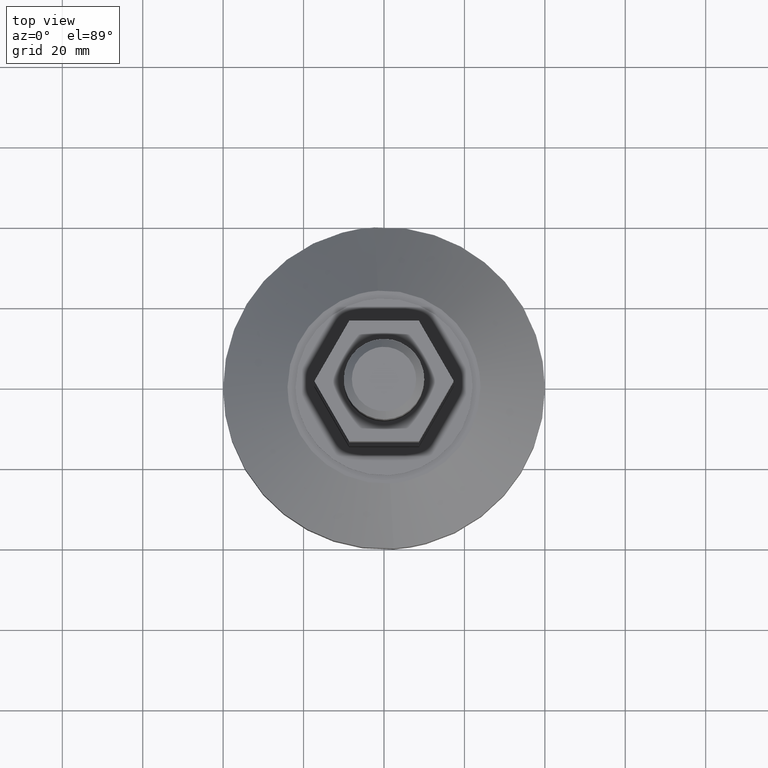
[diagram: clean part render]
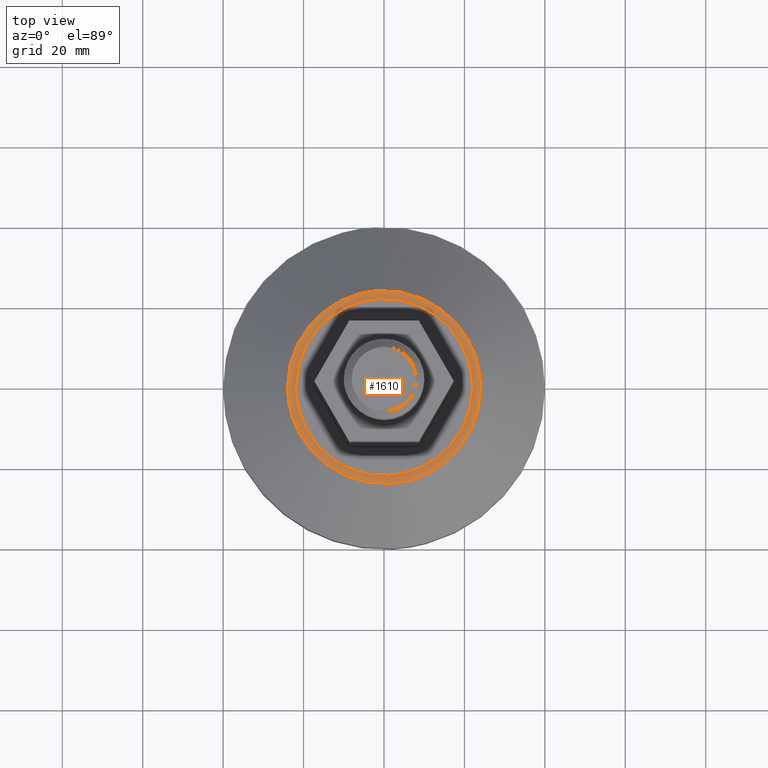
[diagram: same view with one face highlighted and labeled with its STEP entity id]
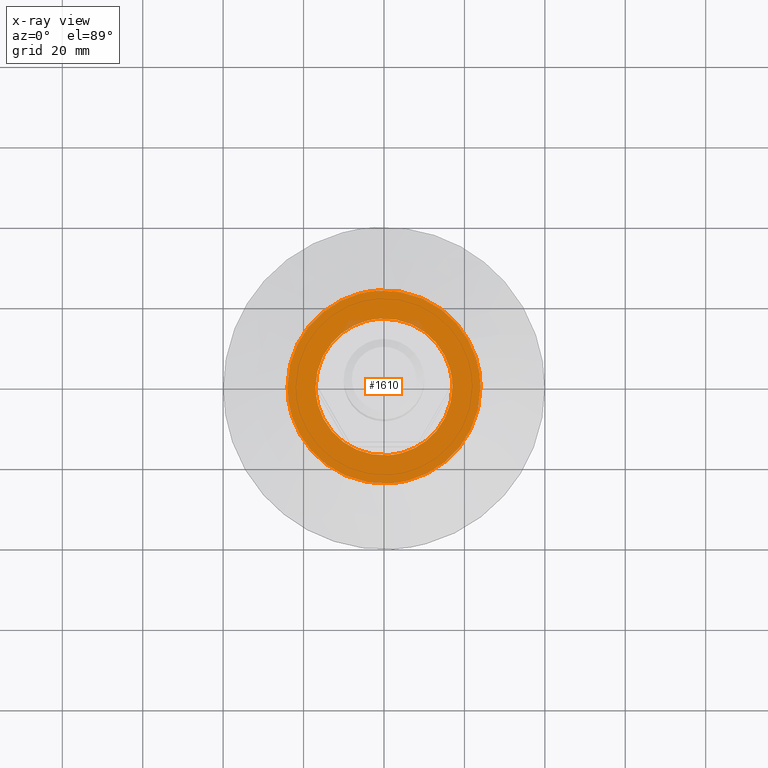
[diagram: x-ray of the same camera — body ghosted, the highlighted face saturated]
A machine part, top view. The second image highlights one B-rep face of the part: STEP entity #1610.
The next image is the same camera in x-ray: the body ghosted, the highlighted face saturated — about 1% of this face is hidden behind the body in this view.
In plain terms, the highlighted face is a freeform B-spline surface patch.
Its self-contained STEP definition (entity closure, byte-faithful):
#1358=CARTESIAN_POINT('',(-1.465164948888598,23.955235162128471,27.999999999994159));
#1359=VERTEX_POINT('',#1358);
#1365=CARTESIAN_POINT('',(23.999999999999659,0.0,28.0));
#1366=VERTEX_POINT('',#1365);
#1367=CARTESIAN_POINT('',(-1.465164948888598,23.955235162128460,27.999999999994156));
#1368=CARTESIAN_POINT('',(-0.733266319192427,24.000000000006715,27.999999999994241));
#1369=CARTESIAN_POINT('',(-4.108950E-013,24.000000000006612,27.999999999994341));
#1370=CARTESIAN_POINT('',(23.999999999999460,24.000000000003027,27.999999999997254));
#1371=CARTESIAN_POINT('',(23.999999999999659,0.0,28.0));
#1379=(BOUNDED_CURVE()B_SPLINE_CURVE(2,(#1367,#1368,#1369,#1370,#1371),.UNSPECIFIED.,.F.,.U.)B_SPLINE_CURVE_WITH_KNOTS((3,2,3),(0.239332962241596,0.250000000000000,0.500000000000000),.UNSPECIFIED.)CURVE()GEOMETRIC_REPRESENTATION_ITEM()RATIONAL_B_SPLINE_CURVE((0.976072041672405,0.987502787902946,1.0,0.707106781186548,1.0))REPRESENTATION_ITEM(''));
#1380=EDGE_CURVE('',#1359,#1366,#1379,.T.);
#1382=CARTESIAN_POINT('',(1.465164948888622,-23.955235162128471,27.999999999994159));
#1383=VERTEX_POINT('',#1382);
#1384=CARTESIAN_POINT('',(23.999999999999659,0.0,28.0));
#1385=CARTESIAN_POINT('',(23.999999999999886,-22.576945605691197,27.999999999997073));
#1386=CARTESIAN_POINT('',(1.465164948888622,-23.955235162128471,27.999999999994163));
#1394=(BOUNDED_CURVE()B_SPLINE_CURVE(2,(#1384,#1385,#1386),.UNSPECIFIED.,.F.,.U.)B_SPLINE_CURVE_WITH_KNOTS((3,3),(0.500000000000000,0.739332962241597),.UNSPECIFIED.)CURVE()GEOMETRIC_REPRESENTATION_ITEM()RATIONAL_B_SPLINE_CURVE((1.0,0.719603993283601,0.976072041672405))REPRESENTATION_ITEM(''));
#1395=EDGE_CURVE('',#1366,#1383,#1394,.T.);
#1427=CARTESIAN_POINT('',(-23.999999999999641,0.0,28.0));
#1428=VERTEX_POINT('',#1427);
#1429=CARTESIAN_POINT('',(1.465164948888622,-23.955235162128471,27.999999999994163));
#1430=CARTESIAN_POINT('',(0.733266319192457,-24.000000000006715,27.999999999994241));
#1431=CARTESIAN_POINT('',(4.462115E-013,-24.000000000006601,27.999999999994330));
#1432=CARTESIAN_POINT('',(-23.999999999999435,-24.000000000003027,27.999999999997254));
#1433=CARTESIAN_POINT('',(-23.999999999999641,0.0,28.0));
#1441=(BOUNDED_CURVE()B_SPLINE_CURVE(2,(#1429,#1430,#1431,#1432,#1433),.UNSPECIFIED.,.F.,.U.)B_SPLINE_CURVE_WITH_KNOTS((3,2,3),(0.739332962241597,0.750000000000000,1.0),.UNSPECIFIED.)CURVE()GEOMETRIC_REPRESENTATION_ITEM()RATIONAL_B_SPLINE_CURVE((0.976072041672405,0.987502787902946,1.0,0.707106781186548,1.0))REPRESENTATION_ITEM(''));
#1442=EDGE_CURVE('',#1383,#1428,#1441,.T.);
#1444=CARTESIAN_POINT('',(-23.999999999999641,0.0,28.0));
#1445=CARTESIAN_POINT('',(-23.999999999999858,22.576945605691183,27.999999999997083));
#1446=CARTESIAN_POINT('',(-1.465164948888598,23.955235162128460,27.999999999994156));
#1454=(BOUNDED_CURVE()B_SPLINE_CURVE(2,(#1444,#1445,#1446),.UNSPECIFIED.,.F.,.U.)B_SPLINE_CURVE_WITH_KNOTS((3,3),(0.0,0.239332962241596),.UNSPECIFIED.)CURVE()GEOMETRIC_REPRESENTATION_ITEM()RATIONAL_B_SPLINE_CURVE((1.0,0.719603993283601,0.976072041672405))REPRESENTATION_ITEM(''));
#1455=EDGE_CURVE('',#1428,#1359,#1454,.T.);
#1533=CARTESIAN_POINT('',(26.397599906966310,-26.397009295420201,28.0));
#1534=CARTESIAN_POINT('',(-26.397601194426620,-26.397009295420201,28.0));
#1535=CARTESIAN_POINT('',(26.397599906966310,26.397008437113321,28.0));
#1536=CARTESIAN_POINT('',(-26.397601194426620,26.397008437113321,28.0));
#1537=B_SPLINE_SURFACE_WITH_KNOTS('',1,1,((#1533,#1535),(#1534,#1536)),.UNSPECIFIED.,.F.,.F.,.U.,(2,2),(2,2),(0.0,52.795201101392927),(0.0,52.794017732533533),.UNSPECIFIED.);
#1538=ORIENTED_EDGE('',*,*,#1442,.F.);
#1539=ORIENTED_EDGE('',*,*,#1395,.F.);
#1540=ORIENTED_EDGE('',*,*,#1380,.F.);
#1541=ORIENTED_EDGE('',*,*,#1455,.F.);
#1542=EDGE_LOOP('',(#1538,#1539,#1540,#1541));
#1543=FACE_OUTER_BOUND('',#1542,.T.);
#1544=CARTESIAN_POINT('',(16.999999999999769,0.0,28.0));
#1545=VERTEX_POINT('',#1544);
#1546=CARTESIAN_POINT('',(1.037819205712291,-16.968291938088829,27.999999999999140));
#1547=VERTEX_POINT('',#1546);
#1548=CARTESIAN_POINT('',(16.999999999999769,0.0,28.0));
#1549=CARTESIAN_POINT('',(16.999999999999737,-15.992008771003023,27.999999999999567));
#1550=CARTESIAN_POINT('',(1.037819205712291,-16.968291938088829,27.999999999999144));
#1558=(BOUNDED_CURVE()B_SPLINE_CURVE(2,(#1548,#1549,#1550),.UNSPECIFIED.,.F.,.U.)B_SPLINE_CURVE_WITH_KNOTS((3,3),(0.500000000000000,0.739333022912767),.UNSPECIFIED.)CURVE()GEOMETRIC_REPRESENTATION_ITEM()RATIONAL_B_SPLINE_CURVE((1.0,0.719603922202903,0.976072171702308))REPRESENTATION_ITEM(''));
#1559=EDGE_CURVE('',#1545,#1547,#1558,.T.);
#1560=ORIENTED_EDGE('',*,*,#1559,.T.);
#1561=CARTESIAN_POINT('',(-16.999999999999741,0.0,28.0));
#1562=VERTEX_POINT('',#1561);
#1563=CARTESIAN_POINT('',(1.037819205712291,-16.968291938088829,27.999999999999144));
#1564=CARTESIAN_POINT('',(0.519393984521322,-16.999999999998717,27.999999999999151));
#1565=CARTESIAN_POINT('',(-4.741119E-014,-16.999999999998739,27.999999999999169));
#1566=CARTESIAN_POINT('',(-16.999999999999766,-16.999999999999268,27.999999999999591));
#1567=CARTESIAN_POINT('',(-16.999999999999741,0.0,28.0));
#1575=(BOUNDED_CURVE()B_SPLINE_CURVE(2,(#1563,#1564,#1565,#1566,#1567),.UNSPECIFIED.,.F.,.U.)B_SPLINE_CURVE_WITH_KNOTS((3,2,3),(0.739333022912767,0.750000000000000,1.0),.UNSPECIFIED.)CURVE()GEOMETRIC_REPRESENTATION_ITEM()RATIONAL_B_SPLINE_CURVE((0.976072171702308,0.987502858983645,1.0,0.707106781186547,1.0))REPRESENTATION_ITEM(''));
#1576=EDGE_CURVE('',#1547,#1562,#1575,.T.);
#1577=ORIENTED_EDGE('',*,*,#1576,.T.);
#1578=CARTESIAN_POINT('',(-1.037819205712261,16.968291938088829,27.999999999999140));
#1579=VERTEX_POINT('',#1578);
#1580=CARTESIAN_POINT('',(-16.999999999999741,0.0,28.0));
#1581=CARTESIAN_POINT('',(-16.999999999999709,15.992008771003023,27.999999999999567));
#1582=CARTESIAN_POINT('',(-1.037819205712261,16.968291938088829,27.999999999999133));
#1590=(BOUNDED_CURVE()B_SPLINE_CURVE(2,(#1580,#1581,#1582),.UNSPECIFIED.,.F.,.U.)B_SPLINE_CURVE_WITH_KNOTS((3,3),(0.0,0.239333022912768),.UNSPECIFIED.)CURVE()GEOMETRIC_REPRESENTATION_ITEM()RATIONAL_B_SPLINE_CURVE((1.0,0.719603922202903,0.976072171702308))REPRESENTATION_ITEM(''));
#1591=EDGE_CURVE('',#1562,#1579,#1590,.T.);
#1592=ORIENTED_EDGE('',*,*,#1591,.T.);
#1593=CARTESIAN_POINT('',(-1.037819205712261,16.968291938088829,27.999999999999133));
#1594=CARTESIAN_POINT('',(-0.519393984521292,16.999999999998717,27.999999999999151));
#1595=CARTESIAN_POINT('',(7.712567E-014,16.999999999998739,27.999999999999169));
#1596=CARTESIAN_POINT('',(16.999999999999790,16.999999999999268,27.999999999999591));
#1597=CARTESIAN_POINT('',(16.999999999999769,0.0,28.0));
#1605=(BOUNDED_CURVE()B_SPLINE_CURVE(2,(#1593,#1594,#1595,#1596,#1597),.UNSPECIFIED.,.F.,.U.)B_SPLINE_CURVE_WITH_KNOTS((3,2,3),(0.239333022912768,0.250000000000000,0.500000000000000),.UNSPECIFIED.)CURVE()GEOMETRIC_REPRESENTATION_ITEM()RATIONAL_B_SPLINE_CURVE((0.976072171702308,0.987502858983645,1.0,0.707106781186547,1.0))REPRESENTATION_ITEM(''));
#1606=EDGE_CURVE('',#1579,#1545,#1605,.T.);
#1607=ORIENTED_EDGE('',*,*,#1606,.T.);
#1608=EDGE_LOOP('',(#1560,#1577,#1592,#1607));
#1609=FACE_BOUND('',#1608,.T.);
#1610=ADVANCED_FACE('',(#1543,#1609),#1537,.F.);